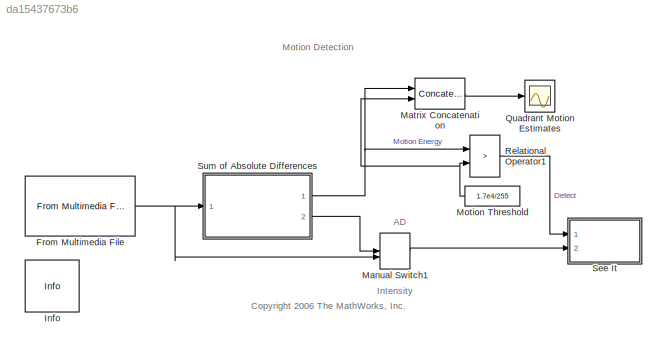
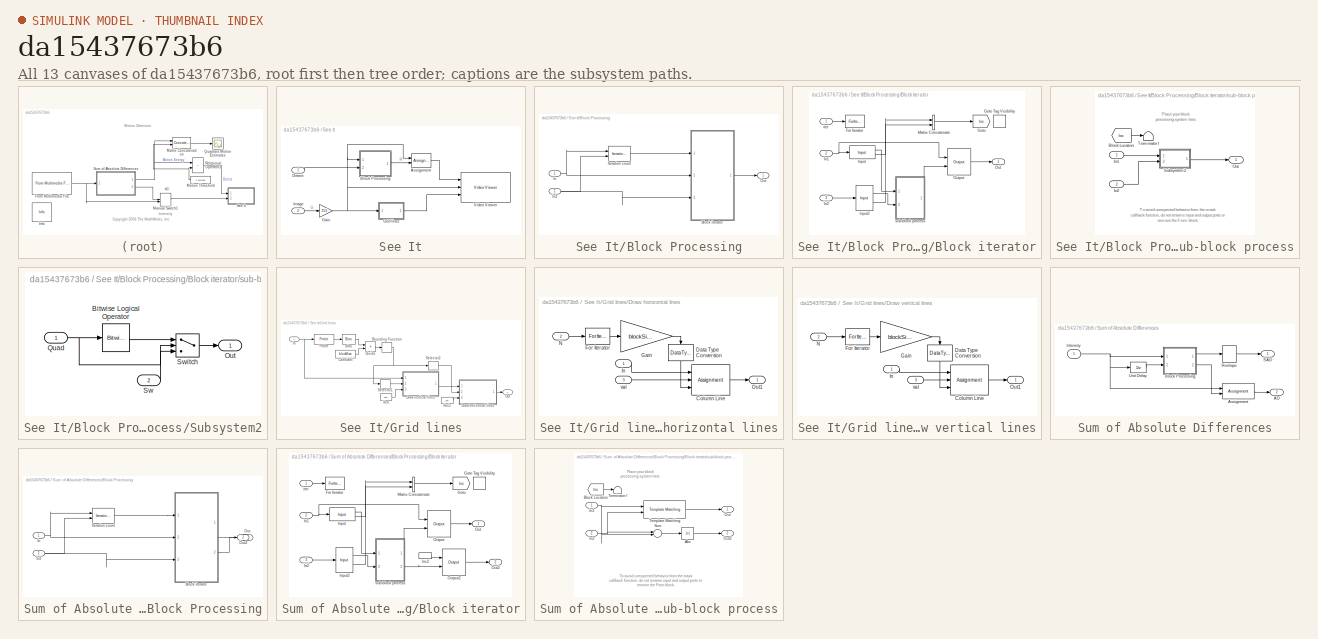
[diagram: thumbnail index - all 13 canvases of the model, root first then tree order]
MODEL slx_da15437673b6
KIND model
CONFIG AbsTol = auto
CONFIG FixedStep = auto
CONFIG MaxStep = auto
CONFIG MinStep = auto
CONFIG RelTol = 1e-3
CONFIG SampleTimeConstraint = Unconstrained
CONFIG Solver = FixedStepDiscrete
CONFIG SolverMode = SingleTasking
CONFIG SolverName = FixedStepDiscrete
CONFIG StartTime = 0.0
CONFIG StopTime = inf
WORKSPACE source: MAT-file member
WORKSPACE blockSize = [60 80]
BLOCK [Reference] From Multimedia File  REF=dspvision/From Multimedia File
  Ports = [0, 1]
  SourceBlock = dspvision/From Multimedia File
  SourceType = From Multimedia File
BLOCK [Reference] Info  REF=vipmisc/Info
  Ports = []
  SourceBlock = vipmisc/Info
  SourceType = Info
BLOCK [ManualSwitch] Manual Switch1
  CurrentSetting = 0
BLOCK [Concatenate] Matrix Concatenation
  Mode = Multidimensional array
  Ports = [2, 1]
BLOCK [Constant] Motion Threshold
  OutDataTypeStr = Inherit: Inherit via back propagation
  Value = 1.7e4/255
  VectorParams1D = off
BLOCK [Scope] Quadrant Motion Estimates
  Ports = [1]
  ScopeSpecificationString = Simulink.scopes.TimeScopeBlockCfg('CurrentConfiguration', extmgr.ConfigurationSet(extmgr.Configuration('Core','General UI',true),extmgr.Configuration('Core','Source UI',true),extmgr.Configuration('Sources','WiredSimulink',true,'DataLoggingVariableName','ScopeData1','DataLoggingSaveFormat','StructureWithTime','DataLoggingLimitDataPoints',true,'DataLoggingDecimation','1','DataLoggingDecimateData',tr...<+1722ch>
BLOCK [RelationalOperator] Relational Operator1
  Operator = >
  OutDataTypeStr = boolean
  Ports = [2, 1]
BLOCK [SubSystem] See It
  Ports = [2]
  RequestExecContextInheritance = off
  Variant = off
BLOCK [Assignment] See It/Assignment
  IndexOptions = Starting index (dialog),Starting index (dialog)
  Indices = 1,1
  NumberOfDimensions = 2
  OutputSizes = 1,1
  Ports = [2, 1]
BLOCK [SubSystem] See It/Block Processing
  CopyFcn = set_param(gcb,'LinkStatus','none');
  DialogController = vipDDGCreate
  Ports = [2, 1]
  RequestExecContextInheritance = off
  TreatAsAtomicUnit = on
  Variant = off
BLOCK [SubSystem] See It/Block Processing/Block iterator
  CopyFcn = set_param(gcb,'ReferenceBlock','');
  Ports = [3, 1]
  RequestExecContextInheritance = off
  Variant = off
BLOCK [ForIterator] See It/Block Processing/Block iterator/For Iterator
  IndexMode = Zero-based
  IterationLimit = (sz(1)/M)*(sz(2)/N)
  IterationSource = external
  IterationVariableDataType = double
  Ports = [1]
  ShowIterationPort = off
BLOCK [Goto] See It/Block Processing/Block iterator/Goto
  GotoTag = loc
  TagVisibility = scoped
BLOCK [GotoTagVisibility] See It/Block Processing/Block iterator/Goto Tag Visibility
  GotoTag = loc
BLOCK [Inport] See It/Block Processing/Block iterator/In1
  IconDisplay = Port number
  Port = 2
BLOCK [Inport] See It/Block Processing/Block iterator/In2
  IconDisplay = Port number
  Port = 3
BLOCK [Reference] See It/Block Processing/Block iterator/Input  REF=vipmisc/Input
  Ports = [1, 2]
  SourceBlock = vipmisc/Input
  SourceType = Input for block processing
BLOCK [Reference] See It/Block Processing/Block iterator/Input2  REF=vipmisc/Input
  Ports = [1, 2]
  SourceBlock = vipmisc/Input
  SourceType = Input for block processing
BLOCK [Concatenate] See It/Block Processing/Block iterator/Matrix Concatenate
  ConcatenateDimension = 2
  Mode = Multidimensional array
  Ports = [2, 1]
BLOCK [Outport] See It/Block Processing/Block iterator/Out
  IconDisplay = Port number
BLOCK [Reference] See It/Block Processing/Block iterator/Output  REF=vipmisc/Output
  Ports = [2, 1]
  SourceBlock = vipmisc/Output
BLOCK [Inport] See It/Block Processing/Block iterator/iter
  IconDisplay = Port number
BLOCK [SubSystem] See It/Block Processing/Block iterator/sub-block process
  Ports = [2, 1]
  RequestExecContextInheritance = off
  Variant = off
BLOCK [From] See It/Block Processing/Block iterator/sub-block process/Block Location
  GotoTag = loc
  TagVisibility = scoped
BLOCK [Inport] See It/Block Processing/Block iterator/sub-block process/In1
  IconDisplay = Port number
BLOCK [Inport] See It/Block Processing/Block iterator/sub-block process/In2
  IconDisplay = Port number
  Port = 2
BLOCK [Outport] See It/Block Processing/Block iterator/sub-block process/Out
  IconDisplay = Port number
BLOCK [SubSystem] See It/Block Processing/Block iterator/sub-block process/Subsystem2
  Ports = [2, 1]
  RequestExecContextInheritance = off
  Variant = off
BLOCK [Reference] See It/Block Processing/Block iterator/sub-block process/Subsystem2/Bitwise Logical Operator  REF=simulink/Logic and Bit
Operations/Bitwise
Operator
  Ports = [1, 1]
  SourceBlock = simulink/Logic and Bit\nOperations/Bitwise\nOperator
  SourceType = Bitwise Operator
BLOCK [Outport] See It/Block Processing/Block iterator/sub-block process/Subsystem2/Out
  IconDisplay = Port number
BLOCK [Inport] See It/Block Processing/Block iterator/sub-block process/Subsystem2/Quad
  IconDisplay = Port number
BLOCK [Inport] See It/Block Processing/Block iterator/sub-block process/Subsystem2/Sw
  IconDisplay = Port number
  Port = 2
BLOCK [Switch] See It/Block Processing/Block iterator/sub-block process/Subsystem2/Switch
  Criteria = u2 ~= 0
BLOCK [Terminator] See It/Block Processing/Block iterator/sub-block process/Terminator I
BLOCK [Inport] See It/Block Processing/In
  IconDisplay = Port number
BLOCK [Inport] See It/Block Processing/In2
  IconDisplay = Port number
  Port = 2
BLOCK [Reference] See It/Block Processing/Iteration count  REF=vipmisc/Iteration count
  Ports = [2, 1]
  SourceBlock = vipmisc/Iteration count
  SourceType = Block processing iteration counter
BLOCK [Outport] See It/Block Processing/Out
  IconDisplay = Port number
BLOCK [Inport] See It/Detect
  IconDisplay = Port number
BLOCK [Gain] See It/Gain
  Gain = 255
  OutDataTypeStr = uint(8)
  SaturateOnIntegerOverflow = off
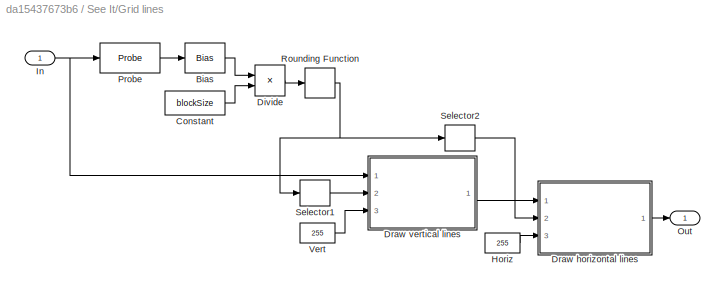
BLOCK [SubSystem] See It/Grid lines
  Ports = [1, 1]
  RequestExecContextInheritance = off
  Variant = off
BLOCK [Bias] See It/Grid lines/Bias
  Bias = -1
  SaturateOnIntegerOverflow = off
BLOCK [Constant] See It/Grid lines/Constant
  Value = blockSize
BLOCK [Product] See It/Grid lines/Divide
  InputSameDT = off
  Inputs = */
  OutDataTypeStr = Inherit: Inherit via internal rule
  Ports = [2, 1]
  RndMeth = Floor
  SaturateOnIntegerOverflow = off
BLOCK [SubSystem] See It/Grid lines/Draw horizontal lines
  Ports = [3, 1]
  RequestExecContextInheritance = off
  TreatAsAtomicUnit = on
  Variant = off
BLOCK [Assignment] See It/Grid lines/Draw horizontal lines/Column Line
  IndexOptions = Index vector (port),Assign all
  Indices = 60,-1
  NumberOfDimensions = 2
  OutputSizes = 1,1
  Ports = [3, 1]
BLOCK [DataTypeConversion] See It/Grid lines/Draw horizontal lines/Data Type Conversion
  RndMeth = Floor
  SaturateOnIntegerOverflow = off
BLOCK [ForIterator] See It/Grid lines/Draw horizontal lines/For Iterator
  IterationSource = external
  Ports = [1, 1]
BLOCK [Gain] See It/Grid lines/Draw horizontal lines/Gain
  Gain = blockSize(1)
  OutDataTypeStr = Inherit: Inherit via internal rule
  ParamDataTypeStr = Inherit: Inherit via internal rule
  SaturateOnIntegerOverflow = off
BLOCK [Inport] See It/Grid lines/Draw horizontal lines/In
  IconDisplay = Port number
BLOCK [Inport] See It/Grid lines/Draw horizontal lines/N
  IconDisplay = Port number
  Port = 2
BLOCK [Outport] See It/Grid lines/Draw horizontal lines/Out1
  IconDisplay = Port number
BLOCK [Inport] See It/Grid lines/Draw horizontal lines/val
  IconDisplay = Port number
  Port = 3
BLOCK [SubSystem] See It/Grid lines/Draw vertical lines
  Ports = [3, 1]
  RequestExecContextInheritance = off
  TreatAsAtomicUnit = on
  Variant = off
BLOCK [Assignment] See It/Grid lines/Draw vertical lines/Column Line
  IndexOptions = Assign all,Index vector (port)
  Indices = 60,-1
  NumberOfDimensions = 2
  OutputSizes = 1,1
  Ports = [3, 1]
BLOCK [DataTypeConversion] See It/Grid lines/Draw vertical lines/Data Type Conversion
  RndMeth = Floor
  SaturateOnIntegerOverflow = off
BLOCK [ForIterator] See It/Grid lines/Draw vertical lines/For Iterator
  IterationSource = external
  Ports = [1, 1]
BLOCK [Gain] See It/Grid lines/Draw vertical lines/Gain
  Gain = blockSize(2)
  OutDataTypeStr = Inherit: Inherit via internal rule
  ParamDataTypeStr = Inherit: Inherit via internal rule
  SaturateOnIntegerOverflow = off
BLOCK [Inport] See It/Grid lines/Draw vertical lines/In
  IconDisplay = Port number
BLOCK [Inport] See It/Grid lines/Draw vertical lines/N
  IconDisplay = Port number
  Port = 2
BLOCK [Outport] See It/Grid lines/Draw vertical lines/Out1
  IconDisplay = Port number
BLOCK [Inport] See It/Grid lines/Draw vertical lines/val
  IconDisplay = Port number
  Port = 3
BLOCK [Constant] See It/Grid lines/Horiz
  OutDataTypeStr = Inherit: Inherit via back propagation
  Value = 255
  VectorParams1D = off
BLOCK [Inport] See It/Grid lines/In
  IconDisplay = Port number
BLOCK [Outport] See It/Grid lines/Out
  IconDisplay = Port number
BLOCK [Probe] See It/Grid lines/Probe
  Ports = [1, 1]
  ProbeComplexSignal = off
  ProbeSampleTime = off
  ProbeSignalDimensions = on
  ProbeWidth = off
BLOCK [Rounding] See It/Grid lines/Rounding Function
BLOCK [Selector] See It/Grid lines/Selector1
  IndexOptions = Index vector (dialog)
  Indices = 2
  InputPortWidth = 2
  OutputSizes = 1
  Ports = [1, 1]
BLOCK [Selector] See It/Grid lines/Selector2
  IndexOptions = Index vector (dialog)
  Indices = 1
  InputPortWidth = 2
  OutputSizes = 1
  Ports = [1, 1]
BLOCK [Constant] See It/Grid lines/Vert
  OutDataTypeStr = Inherit: Inherit via back propagation
  Value = 255
  VectorParams1D = off
BLOCK [Inport] See It/Image
  IconDisplay = Port number
  Port = 2
BLOCK [Reference] See It/Video Viewer  REF=visionsinks/Video Viewer
  Ports = [3]
  SourceBlock = visionsinks/Video Viewer
  SourceType = Video Viewer
  UserDataPersistent = on
BLOCK [SubSystem] Sum of Absolute Differences
  Ports = [1, 2]
  RequestExecContextInheritance = off
  Variant = off
BLOCK [Outport] Sum of Absolute Differences/AD
  IconDisplay = Port number
  Port = 2
BLOCK [Assignment] Sum of Absolute Differences/Assignment
  IndexOptions = Starting index (dialog),Starting index (dialog)
  Indices = 1,1
  NumberOfDimensions = 2
  OutputSizes = 1,1
  Ports = [2, 1]
BLOCK [SubSystem] Sum of Absolute Differences/Block Processing
  CopyFcn = set_param(gcb,'LinkStatus','none');
  DialogController = vipDDGCreate
  Ports = [2, 2]
  RequestExecContextInheritance = off
  TreatAsAtomicUnit = on
  Variant = off
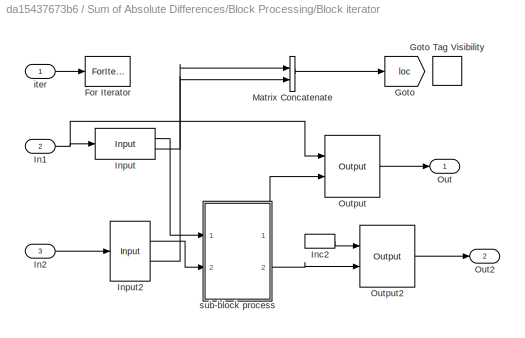
BLOCK [SubSystem] Sum of Absolute Differences/Block Processing/Block iterator
  CopyFcn = set_param(gcb,'ReferenceBlock','');
  Ports = [3, 2]
  RequestExecContextInheritance = off
  Variant = off
BLOCK [ForIterator] Sum of Absolute Differences/Block Processing/Block iterator/For Iterator
  IndexMode = Zero-based
  IterationLimit = (sz(1)/M)*(sz(2)/N)
  IterationSource = external
  IterationVariableDataType = double
  Ports = [1]
  ShowIterationPort = off
BLOCK [Goto] Sum of Absolute Differences/Block Processing/Block iterator/Goto
  GotoTag = loc
  TagVisibility = scoped
BLOCK [GotoTagVisibility] Sum of Absolute Differences/Block Processing/Block iterator/Goto Tag Visibility
  GotoTag = loc
BLOCK [Inport] Sum of Absolute Differences/Block Processing/Block iterator/In1
  IconDisplay = Port number
  Port = 2
BLOCK [Inport] Sum of Absolute Differences/Block Processing/Block iterator/In2
  IconDisplay = Port number
  Port = 3
BLOCK [InportShadow] Sum of Absolute Differences/Block Processing/Block iterator/Inc2
  IconDisplay = Port number
  Port = 2
BLOCK [Reference] Sum of Absolute Differences/Block Processing/Block iterator/Input  REF=vipmisc/Input
  Ports = [1, 2]
  SourceBlock = vipmisc/Input
  SourceType = Input for block processing
BLOCK [Reference] Sum of Absolute Differences/Block Processing/Block iterator/Input2  REF=vipmisc/Input
  Ports = [1, 2]
  SourceBlock = vipmisc/Input
  SourceType = Input for block processing
BLOCK [Concatenate] Sum of Absolute Differences/Block Processing/Block iterator/Matrix Concatenate
  ConcatenateDimension = 2
  Mode = Multidimensional array
  Ports = [2, 1]
BLOCK [Outport] Sum of Absolute Differences/Block Processing/Block iterator/Out
  IconDisplay = Port number
BLOCK [Outport] Sum of Absolute Differences/Block Processing/Block iterator/Out2
  IconDisplay = Port number
  Port = 2
BLOCK [Reference] Sum of Absolute Differences/Block Processing/Block iterator/Output  REF=vipmisc/Output
  Ports = [2, 1]
  SourceBlock = vipmisc/Output
BLOCK [Reference] Sum of Absolute Differences/Block Processing/Block iterator/Output2  REF=vipmisc/Output
  Ports = [2, 1]
  SourceBlock = vipmisc/Output
BLOCK [Inport] Sum of Absolute Differences/Block Processing/Block iterator/iter
  IconDisplay = Port number
BLOCK [SubSystem] Sum of Absolute Differences/Block Processing/Block iterator/sub-block process
  Ports = [2, 2]
  RequestExecContextInheritance = off
  Variant = off
BLOCK [Abs] Sum of Absolute Differences/Block Processing/Block iterator/sub-block process/Abs
BLOCK [From] Sum of Absolute Differences/Block Processing/Block iterator/sub-block process/Block Location
  GotoTag = loc
  TagVisibility = scoped
BLOCK [Inport] Sum of Absolute Differences/Block Processing/Block iterator/sub-block process/In1
  IconDisplay = Port number
BLOCK [Inport] Sum of Absolute Differences/Block Processing/Block iterator/sub-block process/In2
  IconDisplay = Port number
  Port = 2
BLOCK [Outport] Sum of Absolute Differences/Block Processing/Block iterator/sub-block process/Out
  IconDisplay = Port number
BLOCK [Outport] Sum of Absolute Differences/Block Processing/Block iterator/sub-block process/Out2
  IconDisplay = Port number
  Port = 2
BLOCK [Sum] Sum of Absolute Differences/Block Processing/Block iterator/sub-block process/Sum
  IconShape = round
  InputSameDT = off
  Inputs = |-+
  OutDataTypeStr = Inherit: Inherit via internal rule
  Ports = [2, 1]
  SaturateOnIntegerOverflow = off
BLOCK [Reference] Sum of Absolute Differences/Block Processing/Block iterator/sub-block process/Template Matching  REF=visionanalysis/Template Matching
  Ports = [2, 1]
  SourceBlock = visionanalysis/Template Matching
  SourceType = Template Matching
BLOCK [Terminator] Sum of Absolute Differences/Block Processing/Block iterator/sub-block process/Terminator I
BLOCK [Inport] Sum of Absolute Differences/Block Processing/In
  IconDisplay = Port number
BLOCK [Inport] Sum of Absolute Differences/Block Processing/In2
  IconDisplay = Port number
  Port = 2
BLOCK [Reference] Sum of Absolute Differences/Block Processing/Iteration count  REF=vipmisc/Iteration count
  Ports = [2, 1]
  SourceBlock = vipmisc/Iteration count
  SourceType = Block processing iteration counter
BLOCK [Outport] Sum of Absolute Differences/Block Processing/Out
  IconDisplay = Port number
BLOCK [Outport] Sum of Absolute Differences/Block Processing/Out2
  IconDisplay = Port number
  Port = 2
BLOCK [Inport] Sum of Absolute Differences/Intensity
  IconDisplay = Port number
BLOCK [Reshape] Sum of Absolute Differences/Reshape
  OutputDimensionality = Column vector (2-D)
  OutputDimensions = [M,N]
  Ports = [1, 1]
BLOCK [Outport] Sum of Absolute Differences/SAD
  IconDisplay = Port number
BLOCK [UnitDelay] Sum of Absolute Differences/Unit Delay
  InputProcessing = Elements as channels (sample based)
  SampleTime = -1
ANNOTATION (root): AD
ANNOTATION (root): <copyright redacted>
ANNOTATION (root): Intensity
ANNOTATION (root): Motion Detection
ANNOTATION See It/Block Processing/Block iterator/sub-block process: Place your block processing system here.
ANNOTATION See It/Block Processing/Block iterator/sub-block process: To avoid unexpected behavior from the mask callback function, do not rename input and output ports or remove the From block.
ANNOTATION Sum of Absolute Differences/Block Processing/Block iterator/sub-block process: Place your block processing system here.
ANNOTATION Sum of Absolute Differences/Block Processing/Block iterator/sub-block process: To avoid unexpected behavior from the mask callback function, do not rename input and output ports or remove the From block.
NET From Multimedia File:1 -> Manual Switch1:2, Sum of Absolute Differences:1
LINE Manual Switch1:1 -> See It:2
LINE Matrix Concatenation:1 -> Quadrant Motion Estimates:1
NET Motion Threshold:1 -> Matrix Concatenation:2, Relational Operator1:2
LINE Relational Operator1:1 -> See It:1
LINE See It/Assignment:1 -> See It/Video Viewer:1
LINE See It/Block Processing:1 -> See It/Assignment:2
LINE See It/Detect:1 -> See It/Block Processing:2
NET See It/Gain:1 -> See It/Assignment:1, See It/Block Processing:1, See It/Grid lines:1, See It/Video Viewer:2
LINE See It/Grid lines/Bias:1 -> See It/Grid lines/Divide:1
LINE See It/Grid lines/Constant:1 -> See It/Grid lines/Divide:2
LINE See It/Grid lines/Divide:1 -> See It/Grid lines/Rounding Function:1
LINE See It/Grid lines/Draw horizontal lines/Column Line:1 -> See It/Grid lines/Draw horizontal lines/Out1:1
LINE See It/Grid lines/Draw horizontal lines/Data Type Conversion:1 -> See It/Grid lines/Draw horizontal lines/Column Line:3
LINE See It/Grid lines/Draw horizontal lines/For Iterator:1 -> See It/Grid lines/Draw horizontal lines/Gain:1
LINE See It/Grid lines/Draw horizontal lines/Gain:1 -> See It/Grid lines/Draw horizontal lines/Data Type Conversion:1
LINE See It/Grid lines/Draw horizontal lines/In:1 -> See It/Grid lines/Draw horizontal lines/Column Line:1
LINE See It/Grid lines/Draw horizontal lines/N:1 -> See It/Grid lines/Draw horizontal lines/For Iterator:1
LINE See It/Grid lines/Draw horizontal lines/val:1 -> See It/Grid lines/Draw horizontal lines/Column Line:2
LINE See It/Grid lines/Draw horizontal lines:1 -> See It/Grid lines/Out:1
LINE See It/Grid lines/Draw vertical lines/Column Line:1 -> See It/Grid lines/Draw vertical lines/Out1:1
LINE See It/Grid lines/Draw vertical lines/Data Type Conversion:1 -> See It/Grid lines/Draw vertical lines/Column Line:3
LINE See It/Grid lines/Draw vertical lines/For Iterator:1 -> See It/Grid lines/Draw vertical lines/Gain:1
LINE See It/Grid lines/Draw vertical lines/Gain:1 -> See It/Grid lines/Draw vertical lines/Data Type Conversion:1
LINE See It/Grid lines/Draw vertical lines/In:1 -> See It/Grid lines/Draw vertical lines/Column Line:1
LINE See It/Grid lines/Draw vertical lines/N:1 -> See It/Grid lines/Draw vertical lines/For Iterator:1
LINE See It/Grid lines/Draw vertical lines/val:1 -> See It/Grid lines/Draw vertical lines/Column Line:2
LINE See It/Grid lines/Draw vertical lines:1 -> See It/Grid lines/Draw horizontal lines:1
LINE See It/Grid lines/Horiz:1 -> See It/Grid lines/Draw horizontal lines:3
NET See It/Grid lines/In:1 -> See It/Grid lines/Draw vertical lines:1, See It/Grid lines/Probe:1
LINE See It/Grid lines/Probe:1 -> See It/Grid lines/Bias:1
NET See It/Grid lines/Rounding Function:1 -> See It/Grid lines/Selector1:1, See It/Grid lines/Selector2:1
LINE See It/Grid lines/Selector1:1 -> See It/Grid lines/Draw vertical lines:2
LINE See It/Grid lines/Selector2:1 -> See It/Grid lines/Draw horizontal lines:2
LINE See It/Grid lines/Vert:1 -> See It/Grid lines/Draw vertical lines:3
LINE See It/Grid lines:1 -> See It/Video Viewer:3
LINE See It/Image:1 -> See It/Gain:1
LINE Sum of Absolute Differences/Assignment:1 -> Sum of Absolute Differences/AD:1
LINE Sum of Absolute Differences/Block Processing:1 -> Sum of Absolute Differences/Reshape:1
LINE Sum of Absolute Differences/Block Processing:2 -> Sum of Absolute Differences/Assignment:2
NET Sum of Absolute Differences/Intensity:1 -> Sum of Absolute Differences/Assignment:1, Sum of Absolute Differences/Block Processing:1, Sum of Absolute Differences/Unit Delay:1
LINE Sum of Absolute Differences/Reshape:1 -> Sum of Absolute Differences/SAD:1
LINE Sum of Absolute Differences/Unit Delay:1 -> Sum of Absolute Differences/Block Processing:2
NET Sum of Absolute Differences:1 -> Matrix Concatenation:1, Relational Operator1:1
LINE Sum of Absolute Differences:2 -> Manual Switch1:1
note: NET lines group one-source signal fan-out (src -> all destinations, sorted); 1:1 wires keep LINE
